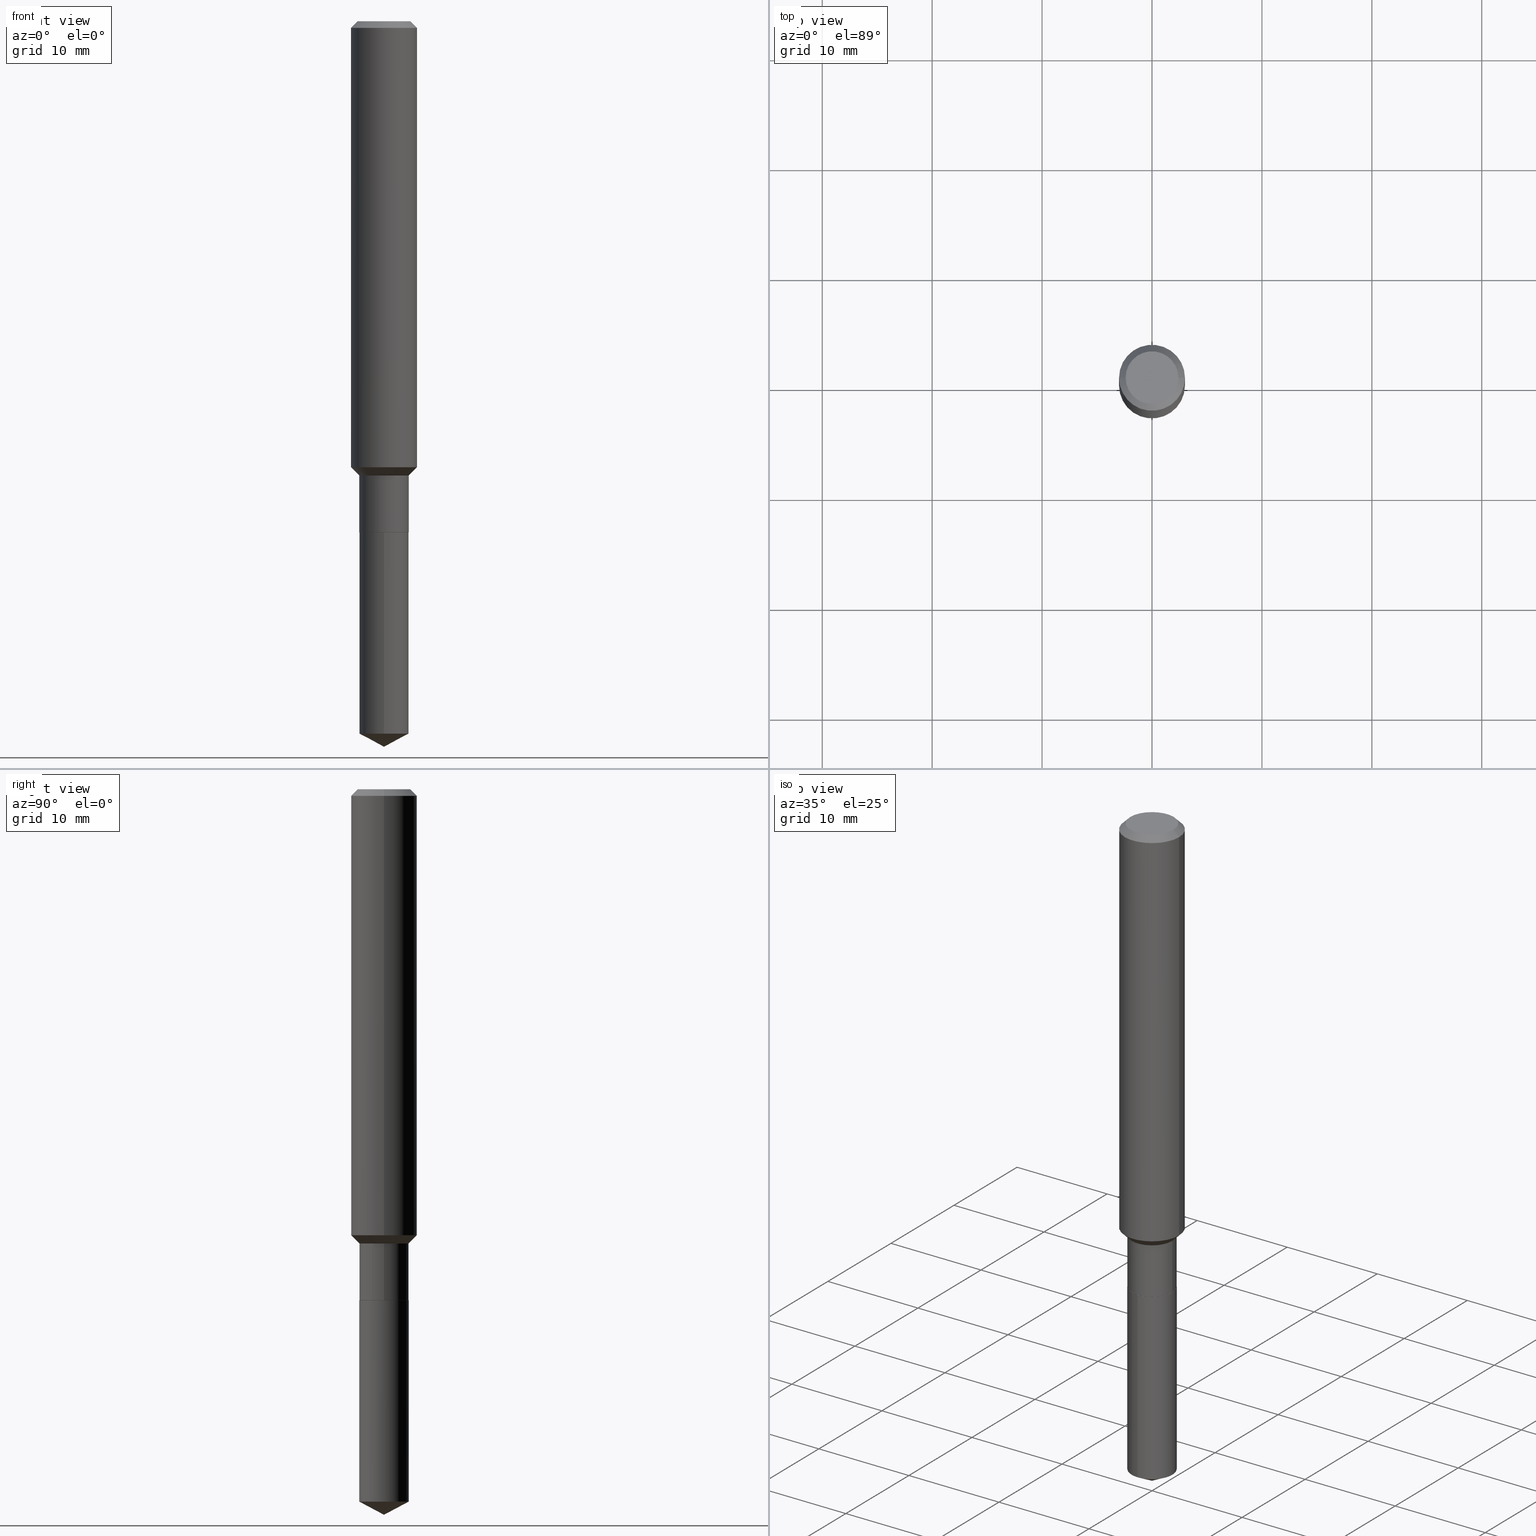
[diagram: canonical four-view strip — front | top / right | iso, engineering-drawing reading convention]
A machine part, canonical four-view strip (front | top / right | iso — engineering-drawing reading convention). The complete STEP part file that produces these views, byte-faithful:
ISO-10303-21;
HEADER;
FILE_DESCRIPTION (( 'STEP AP203' ),
    '1' );
FILE_NAME ('64615.STEP',
    '2024-04-24T18:26:03',
    ( '' ),
    ( '' ),
    'SwSTEP 2.0',
    'SolidWorks 2023',
    '' );
FILE_SCHEMA (( 'CONFIG_CONTROL_DESIGN' ));
ENDSEC;

DATA;
#1 = CIRCLE ( 'NONE', #194, 0.08809999999999999776 ) ;
#2 = DIRECTION ( 'NONE',  ( -2.445542298760082388E-29, 3.491376093292885535E-15, 1.000000000000000000 ) ) ;
#3 = APPROVAL_ROLE ( '' ) ;
#4 = DIRECTION ( 'NONE',  ( 1.000000000000000000, -6.982962677686264344E-15, 0.000000000000000000 ) ) ;
#5 = DATE_TIME_ROLE ( 'classification_date' ) ;
#6 = ORIENTED_EDGE ( 'NONE', *, *, #318, .F. ) ;
#7 = APPROVAL ( #291, 'UNSPECIFIED' ) ;
#8 = CARTESIAN_POINT ( 'NONE',  ( 4.476919743483128975E-29, -6.391854887020145602E-15, -1.830699999999999772 ) ) ;
#9 = ORIENTED_EDGE ( 'NONE', *, *, #26, .T. ) ;
#10 = LOCAL_TIME ( 14, 26, 3.000000000000000000, #464 ) ;
#11 = ORIENTED_EDGE ( 'NONE', *, *, #212, .F. ) ;
#12 = EDGE_LOOP ( 'NONE', ( #406, #47, #111, #485 ) ) ;
#13 = VERTEX_POINT ( 'NONE', #203 ) ;
#14 = CARTESIAN_POINT ( 'NONE',  ( 6.295408638835111705E-16, 0.08859999999999110254, -2.551290544354793521 ) ) ;
#15 = VECTOR ( 'NONE', #265, 39.37007874015748143 ) ;
#16 = PLANE ( 'NONE',  #405 ) ;
#17 = APPLICATION_PROTOCOL_DEFINITION ( 'international standard', 'config_control_design', 1994, #295 ) ;
#18 = ADVANCED_FACE ( 'NONE', ( #205 ), #351, .T. ) ;
#19 = DIRECTION ( 'NONE',  ( 1.000000000000000000, -6.982962677686265922E-15, 4.876176775795935793E-29 ) ) ;
#20 = CARTESIAN_POINT ( 'NONE',  ( 3.906391871000136996E-29, -5.577292290668039694E-15, -1.597399999999999709 ) ) ;
#21 = AXIS2_PLACEMENT_3D ( 'NONE', #362, #164, #478 ) ;
#22 = CC_DESIGN_APPROVAL ( #402, ( #489 ) ) ;
#23 = CARTESIAN_POINT ( 'NONE',  ( 5.776197320209327532E-31, -8.246878922347559293E-17, -0.02362000000000014088 ) ) ;
#24 = CARTESIAN_POINT ( 'NONE',  ( 3.978533200782598270E-29, -5.680290990163912349E-15, -1.626899999999999791 ) ) ;
#25 = DIRECTION ( 'NONE',  ( -2.445468806185136597E-29, 3.491481338843145583E-15, 1.000000000000000000 ) ) ;
#26 = EDGE_CURVE ( 'NONE', #467, #154, #45, .T. ) ;
#27 = CARTESIAN_POINT ( 'NONE',  ( -0.08859999999999998432, -5.050750126280464287E-15, -1.626899999999999791 ) ) ;
#28 = ORIENTED_EDGE ( 'NONE', *, *, #158, .F. ) ;
#29 = PERSON_AND_ORGANIZATION_ROLE ( 'classification_officer' ) ;
#30 = CARTESIAN_POINT ( 'NONE',  ( 5.776197320209327532E-31, -8.246878922347559293E-17, -0.02362000000000014088 ) ) ;
#31 = CARTESIAN_POINT ( 'NONE',  ( 4.476919743483128975E-29, -6.391854887020145602E-15, -1.830699999999999772 ) ) ;
#32 = DIRECTION ( 'NONE',  ( 1.000000000000000000, -6.982962677686267499E-15, 4.875432709231658792E-29 ) ) ;
#33 = EDGE_CURVE ( 'NONE', #466, #347, #54, .T. ) ;
#34 = CARTESIAN_POINT ( 'NONE',  ( 4.475697009080036734E-29, -6.390109146350724099E-15, -1.830199999999999827 ) ) ;
#35 = DIRECTION ( 'NONE',  ( 1.000000000000000000, -6.982962677686266711E-15, 0.000000000000000000 ) ) ;
#36 = DIRECTION ( 'NONE',  ( 1.000000000000000000, -6.982962677686270655E-15, 0.000000000000000000 ) ) ;
#37 = CIRCLE ( 'NONE', #177, 0.1181000000000001909 ) ;
#38 = VERTEX_POINT ( 'NONE', #395 ) ;
#39 = ADVANCED_FACE ( 'NONE', ( #200 ), #480, .T. ) ;
#40 = DIRECTION ( 'NONE',  ( -2.445468806185136597E-29, 3.491481338843145583E-15, 1.000000000000000000 ) ) ;
#41 = ORIENTED_EDGE ( 'NONE', *, *, #26, .F. ) ;
#42 = CARTESIAN_POINT ( 'NONE',  ( -0.08859999999999998432, -5.405659204373870556E-15, -1.626899999999999791 ) ) ;
#43 = ORIENTED_EDGE ( 'NONE', *, *, #242, .F. ) ;
#44 = ORIENTED_EDGE ( 'NONE', *, *, #353, .F. ) ;
#45 = CIRCLE ( 'NONE', #209, 0.08859999999999999820 ) ;
#46 = ORIENTED_EDGE ( 'NONE', *, *, #49, .F. ) ;
#47 = ORIENTED_EDGE ( 'NONE', *, *, #236, .T. ) ;
#48 = DIRECTION ( 'NONE',  ( -6.982962677686265133E-15, -1.000000000000000000, 6.166699759964476650E-15 ) ) ;
#49 = EDGE_CURVE ( 'NONE', #227, #115, #176, .T. ) ;
#50 = PRODUCT_DEFINITION_FORMATION_WITH_SPECIFIED_SOURCE ( 'ANY', '', #479, .NOT_KNOWN. ) ;
#51 = DIRECTION ( 'NONE',  ( 1.000000000000000000, -6.982962677686265922E-15, 4.876176775795935232E-29 ) ) ;
#52 = DIRECTION ( 'NONE',  ( 1.000000000000000000, -6.982962677686267499E-15, 4.875432709231658792E-29 ) ) ;
#53 = DIRECTION ( 'NONE',  ( -2.445542298760082388E-29, 3.491376093292885535E-15, 1.000000000000000000 ) ) ;
#54 = CIRCLE ( 'NONE', #277, 0.08859999999999999820 ) ;
#55 = VECTOR ( 'NONE', #103, 39.37007874015748143 ) ;
#56 = EDGE_CURVE ( 'NONE', #38, #231, #155, .T. ) ;
#57 = CARTESIAN_POINT ( 'NONE',  ( 6.239154399789330542E-29, -8.907707486633376146E-15, -2.551290544354793077 ) ) ;
#58 = CARTESIAN_POINT ( 'NONE',  ( -0.08809999999999999776, -5.765866736815497650E-15, -1.830699999999999772 ) ) ;
#59 = PERSON_AND_ORGANIZATION ( #393, #182 ) ;
#60 = DIRECTION ( 'NONE',  ( 2.438088387897960049E-29, -3.491481338843145188E-15, -1.000000000000000000 ) ) ;
#61 = LINE ( 'NONE', #451, #165 ) ;
#62 = ADVANCED_FACE ( 'NONE', ( #247 ), #364, .T. ) ;
#63 = CLOSED_SHELL ( 'NONE', ( #171, #438, #39, #129, #62, #469, #228, #357, #97, #408, #90, #333 ) ) ;
#64 = VECTOR ( 'NONE', #307, 39.37007874015748143 ) ;
#65 = CARTESIAN_POINT ( 'NONE',  ( 4.476919743483128975E-29, -6.391854887020145602E-15, -1.830699999999999772 ) ) ;
#66 = DIRECTION ( 'NONE',  ( -2.445468806185136597E-29, 3.491481338843145583E-15, 1.000000000000000000 ) ) ;
#67 = CARTESIAN_POINT ( 'NONE',  ( 4.475697009080036734E-29, -6.390109146350724099E-15, -1.830199999999999827 ) ) ;
#68 = DIRECTION ( 'NONE',  ( -2.445468806185136597E-29, 3.491481338843145583E-15, 1.000000000000000000 ) ) ;
#69 = CIRCLE ( 'NONE', #126, 0.08859999999999998432 ) ;
#70 = AXIS2_PLACEMENT_3D ( 'NONE', #96, #255, #335 ) ;
#71 = ORIENTED_EDGE ( 'NONE', *, *, #369, .T. ) ;
#72 = CARTESIAN_POINT ( 'NONE',  ( 4.476919743483128975E-29, -6.391854887020145602E-15, -1.830699999999999772 ) ) ;
#73 = PERSON_AND_ORGANIZATION_ROLE ( 'design_supplier' ) ;
#74 = ORIENTED_EDGE ( 'NONE', *, *, #276, .T. ) ;
#75 = ORIENTED_EDGE ( 'NONE', *, *, #282, .F. ) ;
#76 = EDGE_CURVE ( 'NONE', #231, #392, #366, .T. ) ;
#77 = ORIENTED_EDGE ( 'NONE', *, *, #135, .F. ) ;
#78 = VECTOR ( 'NONE', #452, 39.37007874015748143 ) ;
#79 = EDGE_LOOP ( 'NONE', ( #77, #146 ) ) ;
#80 = EDGE_CURVE ( 'NONE', #350, #428, #69, .T. ) ;
#81 = EDGE_LOOP ( 'NONE', ( #240, #197, #287, #432 ) ) ;
#82 = CARTESIAN_POINT ( 'NONE',  ( 4.476919743483128975E-29, -6.391854887020145602E-15, -1.830699999999999772 ) ) ;
#83 = AXIS2_PLACEMENT_3D ( 'NONE', #23, #128, #161 ) ;
#84 = CARTESIAN_POINT ( 'NONE',  ( 6.354497109098197355E-29, -9.071991640812233890E-15, -2.598399999999999821 ) ) ;
#85 = LOCAL_TIME ( 14, 26, 3.000000000000000000, #253 ) ;
#86 = ORIENTED_EDGE ( 'NONE', *, *, #148, .F. ) ;
#87 = FACE_OUTER_BOUND ( 'NONE', #283, .T. ) ;
#88 = DIRECTION ( 'NONE',  ( -2.438088387897960049E-29, 3.491481338843145188E-15, 1.000000000000000000 ) ) ;
#89 = PERSON_AND_ORGANIZATION_ROLE ( 'design_owner' ) ;
#90 = ADVANCED_FACE ( 'NONE', ( #471 ), #16, .F. ) ;
#91 = DIRECTION ( 'NONE',  ( -2.445542298760082388E-29, 3.491376093292885535E-15, 1.000000000000000000 ) ) ;
#92 = APPLICATION_PROTOCOL_DEFINITION ( 'international standard', 'config_control_design', 1994, #409 ) ;
#93 = VECTOR ( 'NONE', #186, 39.37007874015748143 ) ;
#94 = DIRECTION ( 'NONE',  ( 0.7071067811865460184, -7.319954787623251312E-15, -0.7071067811865490160 ) ) ;
#95 = LINE ( 'NONE', #454, #55 ) ;
#96 = CARTESIAN_POINT ( 'NONE',  ( 6.239154399789330542E-29, -8.907707486633376146E-15, -2.551290544354793077 ) ) ;
#97 = ADVANCED_FACE ( 'NONE', ( #160 ), #309, .T. ) ;
#98 = APPROVAL_DATE_TIME ( #113, #7 ) ;
#99 = DIRECTION ( 'NONE',  ( 1.000000000000000000, -6.982962677686270655E-15, 0.000000000000000000 ) ) ;
#100 = VECTOR ( 'NONE', #403, 39.37007874015748143 ) ;
#101 = CIRCLE ( 'NONE', #157, 0.08859999999999999820 ) ;
#102 = DIRECTION ( 'NONE',  ( 1.000000000000000000, -6.982962677686264344E-15, 0.000000000000000000 ) ) ;
#103 = DIRECTION ( 'NONE',  ( -6.165590087286836029E-15, -0.8829475928589264333, 0.4694715627858916385 ) ) ;
#104 = DIRECTION ( 'NONE',  ( -2.445542298760082388E-29, 3.491376093292885535E-15, 1.000000000000000000 ) ) ;
#105 = ADVANCED_FACE ( 'NONE', ( #321 ), #437, .T. ) ;
#106 = DIRECTION ( 'NONE',  ( -2.445468806185136597E-29, 3.491481338843145583E-15, 1.000000000000000000 ) ) ;
#107 = PERSON_AND_ORGANIZATION ( #393, #182 ) ;
#108 = ORIENTED_EDGE ( 'NONE', *, *, #378, .F. ) ;
#109 = DIRECTION ( 'NONE',  ( -2.445468806185136877E-29, 3.491481338843145188E-15, 1.000000000000000000 ) ) ;
#110 = DATE_AND_TIME ( #273, #151 ) ;
#111 = ORIENTED_EDGE ( 'NONE', *, *, #282, .T. ) ;
#112 = CARTESIAN_POINT ( 'NONE',  ( 0.1181000000000001077, -8.246878922347488542E-16, 5.758764772215005345E-30 ) ) ;
#113 = DATE_AND_TIME ( #271, #248 ) ;
#114 = ORIENTED_EDGE ( 'NONE', *, *, #426, .F. ) ;
#115 = VERTEX_POINT ( 'NONE', #286 ) ;
#116 = ORIENTED_EDGE ( 'NONE', *, *, #250, .T. ) ;
#117 = AXIS2_PLACEMENT_3D ( 'NONE', #125, #284, #52 ) ;
#118 = MANIFOLD_SOLID_BREP ( 'Body-Move/Copy2[1]', #379 ) ;
#119 = ADVANCED_FACE ( 'NONE', ( #376 ), #367, .F. ) ;
#120 = CARTESIAN_POINT ( 'NONE',  ( 4.476919743483128975E-29, -6.391854887020145602E-15, -1.830699999999999772 ) ) ;
#121 = PRODUCT_RELATED_PRODUCT_CATEGORY ( 'detail', '', ( #479 ) ) ;
#122 = ORIENTED_EDGE ( 'NONE', *, *, #80, .F. ) ;
#123 = ADVANCED_BREP_SHAPE_REPRESENTATION ( '64615', ( #118, #127, #340 ), #234 ) ;
#124 = CARTESIAN_POINT ( 'NONE',  ( 6.295408638835111705E-16, 0.08859999999999361442, -1.830699999999999994 ) ) ;
#125 = CARTESIAN_POINT ( 'NONE',  ( 6.603013411620882309E-46, -9.427353171913646324E-32, -2.700101262760083747E-17 ) ) ;
#126 = AXIS2_PLACEMENT_3D ( 'NONE', #208, #25, #170 ) ;
#127 = MANIFOLD_SOLID_BREP ( 'Body-Move/Copy2[2]', #63 ) ;
#128 = DIRECTION ( 'NONE',  ( 2.445468806185136597E-29, -3.491481338843145583E-15, -1.000000000000000000 ) ) ;
#129 = ADVANCED_FACE ( 'NONE', ( #132 ), #259, .T. ) ;
#130 = ORIENTED_EDGE ( 'NONE', *, *, #326, .T. ) ;
#131 = CC_DESIGN_PERSON_AND_ORGANIZATION_ASSIGNMENT ( #216, #73, ( #50 ) ) ;
#132 = FACE_OUTER_BOUND ( 'NONE', #81, .T. ) ;
#133 = APPROVAL_STATUS ( 'not_yet_approved' ) ;
#134 = APPROVAL_PERSON_ORGANIZATION ( #320, #402, #3 ) ;
#135 = EDGE_CURVE ( 'NONE', #316, #152, #476, .T. ) ;
#136 = FACE_OUTER_BOUND ( 'NONE', #181, .T. ) ;
#137 = ORIENTED_EDGE ( 'NONE', *, *, #242, .T. ) ;
#138 = CARTESIAN_POINT ( 'NONE',  ( -8.992683029832891878E-28, 1.283835673906032271E-13, 36.77167874015748339 ) ) ;
#139 = CARTESIAN_POINT ( 'NONE',  ( 0.08859999999999999820, -7.008799639593727840E-15, -1.830199999999999827 ) ) ;
#140 = AXIS2_PLACEMENT_3D ( 'NONE', #72, #2, #458 ) ;
#141 = LINE ( 'NONE', #58, #468 ) ;
#142 = ORIENTED_EDGE ( 'NONE', *, *, #369, .F. ) ;
#143 = EDGE_CURVE ( 'NONE', #152, #13, #141, .T. ) ;
#144 = LINE ( 'NONE', #270, #64 ) ;
#145 = CARTESIAN_POINT ( 'NONE',  ( 0.08859999999999998432, -6.186904932430030515E-16, 4.320292623355198064E-30 ) ) ;
#146 = ORIENTED_EDGE ( 'NONE', *, *, #363, .F. ) ;
#147 = CARTESIAN_POINT ( 'NONE',  ( 0.08809999999999999776, -7.007053898924305548E-15, -1.830699999999999772 ) ) ;
#148 = EDGE_CURVE ( 'NONE', #350, #227, #414, .T. ) ;
#149 = DIRECTION ( 'NONE',  ( -2.445468806185136597E-29, 3.491481338843145583E-15, 1.000000000000000000 ) ) ;
#150 = DATE_AND_TIME ( #386, #85 ) ;
#151 = LOCAL_TIME ( 14, 26, 3.000000000000000000, #449 ) ;
#152 = VERTEX_POINT ( 'NONE', #301 ) ;
#153 = ORIENTED_EDGE ( 'NONE', *, *, #76, .T. ) ;
#154 = VERTEX_POINT ( 'NONE', #455 ) ;
#155 = CIRCLE ( 'NONE', #117, 0.09447999999999998066 ) ;
#156 = VERTEX_POINT ( 'NONE', #139 ) ;
#157 = AXIS2_PLACEMENT_3D ( 'NONE', #67, #213, #448 ) ;
#158 = EDGE_CURVE ( 'NONE', #156, #13, #435, .T. ) ;
#159 = CYLINDRICAL_SURFACE ( 'NONE', #183, 0.08859999999999998432 ) ;
#160 = FACE_OUTER_BOUND ( 'NONE', #456, .T. ) ;
#161 = DIRECTION ( 'NONE',  ( -1.000000000000000000, 6.982962677686266711E-15, 0.000000000000000000 ) ) ;
#162 = DIRECTION ( 'NONE',  ( 0.7071067811866199593, -2.468850131083015945E-15, 0.7071067811864750752 ) ) ;
#163 = EDGE_CURVE ( 'NONE', #154, #347, #61, .T. ) ;
#164 = DIRECTION ( 'NONE',  ( -2.445542298760082388E-29, 3.491376093292885535E-15, 1.000000000000000000 ) ) ;
#165 = VECTOR ( 'NONE', #327, 39.37007874015748143 ) ;
#166 = CARTESIAN_POINT ( 'NONE',  ( 0.000000000000000000, 0.000000000000000000, 0.000000000000000000 ) ) ;
#167 = AXIS2_PLACEMENT_3D ( 'NONE', #24, #169, #245 ) ;
#168 = ORIENTED_EDGE ( 'NONE', *, *, #80, .T. ) ;
#169 = DIRECTION ( 'NONE',  ( -2.445468806185136597E-29, 3.491481338843145583E-15, 1.000000000000000000 ) ) ;
#170 = DIRECTION ( 'NONE',  ( 1.000000000000000000, -6.982962677686270655E-15, 0.000000000000000000 ) ) ;
#171 = ADVANCED_FACE ( 'NONE', ( #289 ), #482, .T. ) ;
#172 = COORDINATED_UNIVERSAL_TIME_OFFSET ( 5, 0, .BEHIND. ) ;
#173 = CARTESIAN_POINT ( 'NONE',  ( 6.295408638834934212E-16, 0.08859999999999361442, -1.830699999999999994 ) ) ;
#174 = ORIENTED_EDGE ( 'NONE', *, *, #143, .F. ) ;
#175 = PERSON_AND_ORGANIZATION ( #393, #182 ) ;
#176 = CIRCLE ( 'NONE', #193, 0.1181000000000001909 ) ;
#177 = AXIS2_PLACEMENT_3D ( 'NONE', #223, #381, #336 ) ;
#178 = CARTESIAN_POINT ( 'NONE',  ( -0.09447999999999998066, 7.009847083995354710E-16, -2.700101262760559836E-17 ) ) ;
#179 = DIRECTION ( 'NONE',  ( 0.7071067811865493491, -2.468850131082276388E-15, 0.7071067811865456854 ) ) ;
#180 = DIRECTION ( 'NONE',  ( 6.982962677686265922E-15, 1.000000000000000000, -3.491376093292885535E-15 ) ) ;
#181 = EDGE_LOOP ( 'NONE', ( #44, #302, #41 ) ) ;
#182 = ORGANIZATION ( 'UNSPECIFIED', 'UNSPECIFIED', '' ) ;
#183 = AXIS2_PLACEMENT_3D ( 'NONE', #322, #239, #281 ) ;
#184 = LINE ( 'NONE', #145, #436 ) ;
#185 = CC_DESIGN_SECURITY_CLASSIFICATION ( #310, ( #50 ) ) ;
#186 = DIRECTION ( 'NONE',  ( -2.445468806185136877E-29, 3.491481338843145188E-15, 1.000000000000000000 ) ) ;
#187 = CYLINDRICAL_SURFACE ( 'NONE', #140, 0.08859999999999999820 ) ;
#188 = ORIENTED_EDGE ( 'NONE', *, *, #33, .F. ) ;
#189 = ADVANCED_FACE ( 'NONE', ( #136 ), #199, .T. ) ;
#190 = CYLINDRICAL_SURFACE ( 'NONE', #477, 0.1181000000000001077 ) ;
#191 = APPROVAL_STATUS ( 'not_yet_approved' ) ;
#192 = ORIENTED_EDGE ( 'NONE', *, *, #204, .F. ) ;
#193 = AXIS2_PLACEMENT_3D ( 'NONE', #20, #441, #244 ) ;
#194 = AXIS2_PLACEMENT_3D ( 'NONE', #8, #149, #463 ) ;
#195 = EDGE_LOOP ( 'NONE', ( #461, #237, #28, #427 ) ) ;
#196 = PRODUCT_DEFINITION_SHAPE ( 'NONE', 'NONE',  #489 ) ;
#197 = ORIENTED_EDGE ( 'NONE', *, *, #148, .T. ) ;
#198 = EDGE_LOOP ( 'NONE', ( #86, #168, #116, #46 ) ) ;
#199 = CONICAL_SURFACE ( 'NONE', #268, 74.04434902938362484, 1.082104136236486935 ) ;
#200 = FACE_OUTER_BOUND ( 'NONE', #314, .T. ) ;
#201 = CC_DESIGN_APPROVAL ( #221, ( #50 ) ) ;
#202 = PERSON_AND_ORGANIZATION ( #393, #182 ) ;
#203 = CARTESIAN_POINT ( 'NONE',  ( -0.08859999999999999820, -5.405659204373870556E-15, -1.830199999999999827 ) ) ;
#204 = EDGE_CURVE ( 'NONE', #467, #466, #257, .T. ) ;
#205 = FACE_OUTER_BOUND ( 'NONE', #425, .T. ) ;
#206 =( LENGTH_UNIT ( ) NAMED_UNIT ( * ) SI_UNIT ( $, .METRE. ) );
#207 = DIMENSIONAL_EXPONENTS ( 1.000000000000000000, 0.000000000000000000, 0.000000000000000000, 0.000000000000000000, 0.000000000000000000, 0.000000000000000000, 0.000000000000000000 ) ;
#208 = CARTESIAN_POINT ( 'NONE',  ( 3.978533200782598270E-29, -5.680290990163912349E-15, -1.626899999999999791 ) ) ;
#209 = AXIS2_PLACEMENT_3D ( 'NONE', #57, #91, #48 ) ;
#210 = CONICAL_SURFACE ( 'NONE', #285, 0.08809999999999999776, 0.7853981633975507526 ) ;
#211 = DIRECTION ( 'NONE',  ( -2.445468806185136597E-29, 3.491481338843145583E-15, 1.000000000000000000 ) ) ;
#212 = EDGE_CURVE ( 'NONE', #13, #350, #299, .T. ) ;
#213 = DIRECTION ( 'NONE',  ( -2.445468806185136597E-29, 3.491481338843145583E-15, 1.000000000000000000 ) ) ;
#214 = APPROVAL_DATE_TIME ( #110, #221 ) ;
#215 = DIRECTION ( 'NONE',  ( 2.445542298760082107E-29, -3.491376093292885535E-15, -1.000000000000000000 ) ) ;
#216 = PERSON_AND_ORGANIZATION ( #393, #182 ) ;
#217 = CONICAL_SURFACE ( 'NONE', #380, 0.1180999999999999966, 0.7853981633974461696 ) ;
#218 = CARTESIAN_POINT ( 'NONE',  ( 3.978533200782598270E-29, -5.680290990163912349E-15, -1.626899999999999791 ) ) ;
#219 = PLANE ( 'NONE',  #278 ) ;
#220 = DIRECTION ( 'NONE',  ( -6.982962677686266711E-15, -1.000000000000000000, 3.541896320645556530E-15 ) ) ;
#221 = APPROVAL ( #133, 'UNSPECIFIED' ) ;
#222 = DIRECTION ( 'NONE',  ( -2.445468806185136597E-29, 3.491481338843145583E-15, 1.000000000000000000 ) ) ;
#223 = CARTESIAN_POINT ( 'NONE',  ( 3.906391871000136996E-29, -5.577292290668039694E-15, -1.597399999999999709 ) ) ;
#224 = VECTOR ( 'NONE', #487, 39.37007874015748143 ) ;
#225 = AXIS2_PLACEMENT_3D ( 'NONE', #418, #222, #341 ) ;
#226 = FACE_OUTER_BOUND ( 'NONE', #272, .T. ) ;
#227 = VERTEX_POINT ( 'NONE', #481 ) ;
#228 = ADVANCED_FACE ( 'NONE', ( #296 ), #429, .T. ) ;
#229 = CARTESIAN_POINT ( 'NONE',  ( 0.08809999999999999776, -7.007053898924305548E-15, -1.830699999999999772 ) ) ;
#230 = APPROVAL_ROLE ( '' ) ;
#231 = VERTEX_POINT ( 'NONE', #178 ) ;
#232 = ORIENTED_EDGE ( 'NONE', *, *, #474, .F. ) ;
#233 = AXIS2_PLACEMENT_3D ( 'NONE', #434, #323, #238 ) ;
#234 =( GEOMETRIC_REPRESENTATION_CONTEXT ( 3 ) GLOBAL_UNCERTAINTY_ASSIGNED_CONTEXT ( ( #413 ) ) GLOBAL_UNIT_ASSIGNED_CONTEXT ( ( #442, #433, #439 ) ) REPRESENTATION_CONTEXT ( 'NONE', 'WORKASPACE' ) );
#235 = ORIENTED_EDGE ( 'NONE', *, *, #474, .T. ) ;
#236 = EDGE_CURVE ( 'NONE', #38, #319, #262, .T. ) ;
#237 = ORIENTED_EDGE ( 'NONE', *, *, #143, .T. ) ;
#238 = DIRECTION ( 'NONE',  ( -6.982962677686266711E-15, -1.000000000000000000, 3.541896320645556530E-15 ) ) ;
#239 = DIRECTION ( 'NONE',  ( -2.445468806185136597E-29, 3.491481338843145583E-15, 1.000000000000000000 ) ) ;
#240 = ORIENTED_EDGE ( 'NONE', *, *, #453, .T. ) ;
#241 = CIRCLE ( 'NONE', #269, 0.08859999999999999820 ) ;
#242 = EDGE_CURVE ( 'NONE', #13, #156, #101, .T. ) ;
#243 = DIRECTION ( 'NONE',  ( -2.445542298760082388E-29, 3.491376093292885535E-15, 1.000000000000000000 ) ) ;
#244 = DIRECTION ( 'NONE',  ( 1.000000000000000000, -6.982962677686269077E-15, 0.000000000000000000 ) ) ;
#245 = DIRECTION ( 'NONE',  ( 1.000000000000000000, -6.982962677686270655E-15, 0.000000000000000000 ) ) ;
#246 = ORIENTED_EDGE ( 'NONE', *, *, #318, .T. ) ;
#247 = FACE_OUTER_BOUND ( 'NONE', #267, .T. ) ;
#248 = LOCAL_TIME ( 14, 26, 3.000000000000000000, #294 ) ;
#249 = DIRECTION ( 'NONE',  ( 1.000000000000000000, 0.000000000000000000, 0.000000000000000000 ) ) ;
#250 = EDGE_CURVE ( 'NONE', #428, #115, #293, .T. ) ;
#251 = CARTESIAN_POINT ( 'NONE',  ( 4.476919743483128975E-29, -6.391854887020145602E-15, -1.830699999999999772 ) ) ;
#252 = ORIENTED_EDGE ( 'NONE', *, *, #288, .T. ) ;
#253 = COORDINATED_UNIVERSAL_TIME_OFFSET ( 5, 0, .BEHIND. ) ;
#254 = FACE_OUTER_BOUND ( 'NONE', #12, .T. ) ;
#255 = DIRECTION ( 'NONE',  ( -2.445542298760082388E-29, 3.491376093292885535E-15, 1.000000000000000000 ) ) ;
#256 = LINE ( 'NONE', #147, #324 ) ;
#257 = LINE ( 'NONE', #173, #358 ) ;
#258 = CC_DESIGN_PERSON_AND_ORGANIZATION_ASSIGNMENT ( #202, #89, ( #479 ) ) ;
#259 = CONICAL_SURFACE ( 'NONE', #373, 0.08859999999999998432, 0.7853981633974509435 ) ;
#260 = AXIS2_PLACEMENT_3D ( 'NONE', #382, #40, #32 ) ;
#261 = CARTESIAN_POINT ( 'NONE',  ( -0.1180999999999999966, -1.990729569013078195E-15, -0.02362000000000014088 ) ) ;
#262 = LINE ( 'NONE', #484, #398 ) ;
#263 = CARTESIAN_POINT ( 'NONE',  ( 0.08859999999999998432, -6.298981483406916090E-15, -1.626899999999999791 ) ) ;
#264 = DIRECTION ( 'NONE',  ( -2.445468806185136597E-29, 3.491481338843145583E-15, 1.000000000000000000 ) ) ;
#265 = DIRECTION ( 'NONE',  ( -2.445468806185136877E-29, 3.491481338843145188E-15, 1.000000000000000000 ) ) ;
#266 = PERSON_AND_ORGANIZATION ( #393, #182 ) ;
#267 = EDGE_LOOP ( 'NONE', ( #388, #421, #313, #368 ) ) ;
#268 = AXIS2_PLACEMENT_3D ( 'NONE', #138, #104, #220 ) ;
#269 = AXIS2_PLACEMENT_3D ( 'NONE', #404, #243, #473 ) ;
#270 = CARTESIAN_POINT ( 'NONE',  ( 6.354499468662278356E-29, -9.071991640812233890E-15, -2.598399999999999821 ) ) ;
#271 = CALENDAR_DATE ( 2024, 24, 4 ) ;
#272 = EDGE_LOOP ( 'NONE', ( #108, #274, #246, #279 ) ) ;
#273 = CALENDAR_DATE ( 2024, 24, 4 ) ;
#274 = ORIENTED_EDGE ( 'NONE', *, *, #49, .T. ) ;
#275 = EDGE_LOOP ( 'NONE', ( #235, #355 ) ) ;
#276 = EDGE_CURVE ( 'NONE', #154, #467, #445, .T. ) ;
#277 = AXIS2_PLACEMENT_3D ( 'NONE', #82, #53, #440 ) ;
#278 = AXIS2_PLACEMENT_3D ( 'NONE', #300, #60, #292 ) ;
#279 = ORIENTED_EDGE ( 'NONE', *, *, #288, .F. ) ;
#280 = ORIENTED_EDGE ( 'NONE', *, *, #163, .F. ) ;
#281 = DIRECTION ( 'NONE',  ( 1.000000000000000000, -6.982962677686265922E-15, 4.876176775795935232E-29 ) ) ;
#282 = EDGE_CURVE ( 'NONE', #319, #392, #365, .T. ) ;
#283 = EDGE_LOOP ( 'NONE', ( #11, #137, #130, #122 ) ) ;
#284 = DIRECTION ( 'NONE',  ( -2.445468806185136597E-29, 3.491481338843145583E-15, 1.000000000000000000 ) ) ;
#285 = AXIS2_PLACEMENT_3D ( 'NONE', #345, #68, #4 ) ;
#286 = CARTESIAN_POINT ( 'NONE',  ( 0.1181000000000001909, -6.401980182902789534E-15, -1.597399999999999709 ) ) ;
#287 = ORIENTED_EDGE ( 'NONE', *, *, #389, .F. ) ;
#288 = EDGE_CURVE ( 'NONE', #392, #319, #352, .T. ) ;
#289 = FACE_OUTER_BOUND ( 'NONE', #195, .T. ) ;
#290 = AXIS2_PLACEMENT_3D ( 'NONE', #399, #211, #51 ) ;
#291 = APPROVAL_STATUS ( 'not_yet_approved' ) ;
#292 = DIRECTION ( 'NONE',  ( -1.000000000000000000, 6.982962677686265922E-15, -4.876176775795935793E-29 ) ) ;
#293 = LINE ( 'NONE', #375, #462 ) ;
#295 = APPLICATION_CONTEXT ( 'configuration controlled 3d designs of mechanical parts and assemblies' ) ;
#294 = COORDINATED_UNIVERSAL_TIME_OFFSET ( 5, 0, .BEHIND. ) ;
#296 = FACE_OUTER_BOUND ( 'NONE', #198, .T. ) ;
#297 = ADVANCED_FACE ( 'NONE', ( #348 ), #187, .T. ) ;
#298 = LINE ( 'NONE', #371, #93 ) ;
#299 = LINE ( 'NONE', #377, #78 ) ;
#300 = CARTESIAN_POINT ( 'NONE',  ( 3.301506705810441154E-46, -4.713676585956823162E-32, -1.350050631380041873E-17 ) ) ;
#301 = CARTESIAN_POINT ( 'NONE',  ( -0.08809999999999999776, -5.763217509641386449E-15, -1.830699999999999772 ) ) ;
#302 = ORIENTED_EDGE ( 'NONE', *, *, #426, .T. ) ;
#303 = DIRECTION ( 'NONE',  ( 1.000000000000000000, -6.982962677686266711E-15, 4.876176775795935793E-29 ) ) ;
#304 = DATE_AND_TIME ( #383, #10 ) ;
#305 = ORIENTED_EDGE ( 'NONE', *, *, #378, .T. ) ;
#306 = CC_DESIGN_DATE_AND_TIME_ASSIGNMENT ( #447, #5, ( #310 ) ) ;
#307 = DIRECTION ( 'NONE',  ( 6.273719981627766865E-15, 0.8829475928589298750, 0.4694715627858853657 ) ) ;
#308 = ORIENTED_EDGE ( 'NONE', *, *, #56, .T. ) ;
#309 = CONICAL_SURFACE ( 'NONE', #83, 0.1180999999999999966, 0.7853981633974461696 ) ;
#310 = SECURITY_CLASSIFICATION ( '', '', #411 ) ;
#311 = LINE ( 'NONE', #112, #15 ) ;
#312 = ORIENTED_EDGE ( 'NONE', *, *, #276, .F. ) ;
#313 = ORIENTED_EDGE ( 'NONE', *, *, #453, .F. ) ;
#314 = EDGE_LOOP ( 'NONE', ( #430, #305, #75, #6 ) ) ;
#315 = CC_DESIGN_APPROVAL ( #7, ( #310 ) ) ;
#316 = VERTEX_POINT ( 'NONE', #229 ) ;
#317 = LENGTH_MEASURE_WITH_UNIT ( LENGTH_MEASURE( 0.02539999999999999897 ), #206 );
#318 = EDGE_CURVE ( 'NONE', #115, #319, #311, .T. ) ;
#319 = VERTEX_POINT ( 'NONE', #419 ) ;
#320 = PERSON_AND_ORGANIZATION ( #393, #182 ) ;
#321 = FACE_OUTER_BOUND ( 'NONE', #394, .T. ) ;
#322 = CARTESIAN_POINT ( 'NONE',  ( 0.000000000000000000, 0.000000000000000000, 0.000000000000000000 ) ) ;
#323 = DIRECTION ( 'NONE',  ( -2.445542298760082388E-29, 3.491376093292885535E-15, 1.000000000000000000 ) ) ;
#324 = VECTOR ( 'NONE', #162, 39.37007874015748143 ) ;
#325 = CARTESIAN_POINT ( 'NONE',  ( 0.000000000000000000, 0.000000000000000000, 0.000000000000000000 ) ) ;
#326 = EDGE_CURVE ( 'NONE', #156, #428, #184, .T. ) ;
#327 = DIRECTION ( 'NONE',  ( -2.445542298760082668E-29, 3.491376093292885535E-15, 1.000000000000000000 ) ) ;
#328 = SHAPE_DEFINITION_REPRESENTATION ( #196, #123 ) ;
#329 = DIRECTION ( 'NONE',  ( -2.445468806185136597E-29, 3.491481338843145583E-15, 1.000000000000000000 ) ) ;
#330 = AXIS2_PLACEMENT_3D ( 'NONE', #34, #264, #488 ) ;
#331 = ORIENTED_EDGE ( 'NONE', *, *, #363, .T. ) ;
#332 = DIRECTION ( 'NONE',  ( 2.445468806185136597E-29, -3.491481338843145583E-15, -1.000000000000000000 ) ) ;
#333 = ADVANCED_FACE ( 'NONE', ( #385 ), #210, .T. ) ;
#334 = DIRECTION ( 'NONE',  ( -0.7071067811866199593, 7.493145998870616062E-15, 0.7071067811864750752 ) ) ;
#335 = DIRECTION ( 'NONE',  ( -6.982962677686265133E-15, -1.000000000000000000, 6.166699759964476650E-15 ) ) ;
#336 = DIRECTION ( 'NONE',  ( 1.000000000000000000, -6.982962677686269077E-15, 0.000000000000000000 ) ) ;
#337 = DIRECTION ( 'NONE',  ( -2.445468806185136597E-29, 3.491481338843145583E-15, 1.000000000000000000 ) ) ;
#338 = EDGE_LOOP ( 'NONE', ( #74, #390, #232, #280 ) ) ;
#339 = AXIS2_PLACEMENT_3D ( 'NONE', #325, #360, #475 ) ;
#340 = AXIS2_PLACEMENT_3D ( 'NONE', #166, #397, #249 ) ;
#341 = DIRECTION ( 'NONE',  ( 1.000000000000000000, -6.982962677686266711E-15, 0.000000000000000000 ) ) ;
#342 = APPROVAL_DATE_TIME ( #150, #402 ) ;
#343 = CC_DESIGN_DATE_AND_TIME_ASSIGNMENT ( #304, #486, ( #489 ) ) ;
#344 = FACE_OUTER_BOUND ( 'NONE', #410, .T. ) ;
#345 = CARTESIAN_POINT ( 'NONE',  ( 4.476919743483128975E-29, -6.391854887020145602E-15, -1.830699999999999772 ) ) ;
#346 = APPROVAL_ROLE ( '' ) ;
#347 = VERTEX_POINT ( 'NONE', #424 ) ;
#348 = FACE_OUTER_BOUND ( 'NONE', #338, .T. ) ;
#349 = CALENDAR_DATE ( 2024, 24, 4 ) ;
#350 = VERTEX_POINT ( 'NONE', #42 ) ;
#351 = CONICAL_SURFACE ( 'NONE', #233, 74.04434902938362484, 1.082104136236486935 ) ;
#352 = CIRCLE ( 'NONE', #225, 0.1180999999999999966 ) ;
#353 = EDGE_CURVE ( 'NONE', #472, #467, #144, .T. ) ;
#354 = ORIENTED_EDGE ( 'NONE', *, *, #443, .T. ) ;
#355 = ORIENTED_EDGE ( 'NONE', *, *, #33, .T. ) ;
#356 = EDGE_LOOP ( 'NONE', ( #174, #331, #354, #43 ) ) ;
#357 = ADVANCED_FACE ( 'NONE', ( #226 ), #190, .T. ) ;
#358 = VECTOR ( 'NONE', #407, 39.37007874015748143 ) ;
#359 = AXIS2_PLACEMENT_3D ( 'NONE', #218, #329, #36 ) ;
#360 = DIRECTION ( 'NONE',  ( -2.445468806185136597E-29, 3.491481338843145583E-15, 1.000000000000000000 ) ) ;
#361 = CARTESIAN_POINT ( 'NONE',  ( -0.1180999999999999966, 7.422191030112725094E-16, -0.02362000000000014088 ) ) ;
#362 = CARTESIAN_POINT ( 'NONE',  ( 4.476919743483128975E-29, -6.391854887020145602E-15, -1.830699999999999772 ) ) ;
#363 = EDGE_CURVE ( 'NONE', #152, #316, #1, .T. ) ;
#364 = CYLINDRICAL_SURFACE ( 'NONE', #290, 0.08859999999999998432 ) ;
#365 = CIRCLE ( 'NONE', #416, 0.1180999999999999966 ) ;
#366 = LINE ( 'NONE', #361, #100 ) ;
#367 = PLANE ( 'NONE',  #415 ) ;
#368 = ORIENTED_EDGE ( 'NONE', *, *, #326, .F. ) ;
#369 = EDGE_CURVE ( 'NONE', #231, #38, #483, .T. ) ;
#370 = PERSON_AND_ORGANIZATION ( #393, #182 ) ;
#371 = CARTESIAN_POINT ( 'NONE',  ( -0.1181000000000001077, 8.391509709326790846E-16, -5.809262341591049389E-30 ) ) ;
#372 = CARTESIAN_POINT ( 'NONE',  ( 3.978533200782598270E-29, -5.680290990163912349E-15, -1.626899999999999791 ) ) ;
#373 = AXIS2_PLACEMENT_3D ( 'NONE', #372, #337, #99 ) ;
#374 = APPROVAL_PERSON_ORGANIZATION ( #175, #7, #230 ) ;
#375 = CARTESIAN_POINT ( 'NONE',  ( 0.08859999999999998432, -6.298981483406916090E-15, -1.626899999999999791 ) ) ;
#376 = FACE_OUTER_BOUND ( 'NONE', #275, .T. ) ;
#377 = CARTESIAN_POINT ( 'NONE',  ( -0.08859999999999998432, 6.295408638834486533E-16, -4.358176489965845566E-30 ) ) ;
#378 = EDGE_CURVE ( 'NONE', #227, #392, #298, .T. ) ;
#379 = CLOSED_SHELL ( 'NONE', ( #297, #18, #189, #105, #119 ) ) ;
#380 = AXIS2_PLACEMENT_3D ( 'NONE', #30, #332, #450 ) ;
#381 = DIRECTION ( 'NONE',  ( -2.445468806185136597E-29, 3.491481338843145583E-15, 1.000000000000000000 ) ) ;
#382 = CARTESIAN_POINT ( 'NONE',  ( 6.603013411620882309E-46, -9.427353171913646324E-32, -2.700101262760083747E-17 ) ) ;
#383 = CALENDAR_DATE ( 2024, 24, 4 ) ;
#384 = ORIENTED_EDGE ( 'NONE', *, *, #236, .F. ) ;
#385 = FACE_OUTER_BOUND ( 'NONE', #356, .T. ) ;
#386 = CALENDAR_DATE ( 2024, 24, 4 ) ;
#387 = DESIGN_CONTEXT ( 'detailed design', #295, 'design' ) ;
#388 = ORIENTED_EDGE ( 'NONE', *, *, #158, .T. ) ;
#389 = EDGE_CURVE ( 'NONE', #115, #227, #37, .T. ) ;
#390 = ORIENTED_EDGE ( 'NONE', *, *, #204, .T. ) ;
#391 = CIRCLE ( 'NONE', #167, 0.08859999999999998432 ) ;
#392 = VERTEX_POINT ( 'NONE', #261 ) ;
#393 = PERSON ( 'UNSPECIFIED', 'UNSPECIFIED', 'UNSPECIFIED', ('UNSPECIFIED'), ('UNSPECIFIED'), ('UNSPECIFIED') ) ;
#394 = EDGE_LOOP ( 'NONE', ( #192, #9, #465, #188 ) ) ;
#395 = CARTESIAN_POINT ( 'NONE',  ( 0.09447999999999998066, -7.704367267948738690E-16, -2.700101262759583929E-17 ) ) ;
#396 = CC_DESIGN_PERSON_AND_ORGANIZATION_ASSIGNMENT ( #59, #29, ( #310 ) ) ;
#397 = DIRECTION ( 'NONE',  ( 0.000000000000000000, 0.000000000000000000, 1.000000000000000000 ) ) ;
#398 = VECTOR ( 'NONE', #94, 39.37007874015748143 ) ;
#399 = CARTESIAN_POINT ( 'NONE',  ( 0.000000000000000000, 0.000000000000000000, 0.000000000000000000 ) ) ;
#400 = ORIENTED_EDGE ( 'NONE', *, *, #353, .T. ) ;
#401 = MECHANICAL_CONTEXT ( 'NONE', #409, 'mechanical' ) ;
#402 = APPROVAL ( #191, 'UNSPECIFIED' ) ;
#403 = DIRECTION ( 'NONE',  ( -0.7071067811865460184, 2.468850131082241283E-15, -0.7071067811865490160 ) ) ;
#404 = CARTESIAN_POINT ( 'NONE',  ( 4.476919743483128975E-29, -6.391854887020145602E-15, -1.830699999999999772 ) ) ;
#405 = AXIS2_PLACEMENT_3D ( 'NONE', #120, #88, #19 ) ;
#406 = ORIENTED_EDGE ( 'NONE', *, *, #56, .F. ) ;
#407 = DIRECTION ( 'NONE',  ( -2.445542298760082668E-29, 3.491376093292885535E-15, 1.000000000000000000 ) ) ;
#408 = ADVANCED_FACE ( 'NONE', ( #344 ), #219, .F. ) ;
#409 = APPLICATION_CONTEXT ( 'configuration controlled 3d designs of mechanical parts and assemblies' ) ;
#410 = EDGE_LOOP ( 'NONE', ( #71, #308 ) ) ;
#411 = SECURITY_CLASSIFICATION_LEVEL ( 'unclassified' ) ;
#412 = DIRECTION ( 'NONE',  ( 1.000000000000000000, -6.982962677686264344E-15, 0.000000000000000000 ) ) ;
#413 = UNCERTAINTY_MEASURE_WITH_UNIT (LENGTH_MEASURE( 1.000000000000000082E-05 ), #442, 'distance_accuracy_value', 'NONE');
#414 = LINE ( 'NONE', #27, #224 ) ;
#415 = AXIS2_PLACEMENT_3D ( 'NONE', #65, #215, #180 ) ;
#416 = AXIS2_PLACEMENT_3D ( 'NONE', #417, #66, #35 ) ;
#417 = CARTESIAN_POINT ( 'NONE',  ( 5.776197320209327532E-31, -8.246878922347559293E-17, -0.02362000000000014088 ) ) ;
#418 = CARTESIAN_POINT ( 'NONE',  ( 5.776197320209327532E-31, -8.246878922347559293E-17, -0.02362000000000014088 ) ) ;
#419 = CARTESIAN_POINT ( 'NONE',  ( 0.1180999999999999966, -9.071566814582237199E-16, -0.02362000000000014088 ) ) ;
#420 = PERSON_AND_ORGANIZATION_ROLE ( 'creator' ) ;
#421 = ORIENTED_EDGE ( 'NONE', *, *, #212, .T. ) ;
#422 = AXIS2_PLACEMENT_3D ( 'NONE', #31, #446, #102 ) ;
#423 = APPROVAL_PERSON_ORGANIZATION ( #266, #221, #346 ) ;
#424 = CARTESIAN_POINT ( 'NONE',  ( -6.186904932429582836E-16, -0.08860000000000638198, -1.830699999999999328 ) ) ;
#425 = EDGE_LOOP ( 'NONE', ( #114, #400, #312 ) ) ;
#426 = EDGE_CURVE ( 'NONE', #472, #154, #95, .T. ) ;
#427 = ORIENTED_EDGE ( 'NONE', *, *, #443, .F. ) ;
#428 = VERTEX_POINT ( 'NONE', #263 ) ;
#429 = CONICAL_SURFACE ( 'NONE', #359, 0.08859999999999998432, 0.7853981633974509435 ) ;
#430 = ORIENTED_EDGE ( 'NONE', *, *, #389, .T. ) ;
#431 = CC_DESIGN_PERSON_AND_ORGANIZATION_ASSIGNMENT ( #107, #459, ( #489 ) ) ;
#432 = ORIENTED_EDGE ( 'NONE', *, *, #250, .F. ) ;
#433 =( NAMED_UNIT ( * ) PLANE_ANGLE_UNIT ( ) SI_UNIT ( $, .RADIAN. ) );
#434 = CARTESIAN_POINT ( 'NONE',  ( -8.992683029832891878E-28, 1.283835673906032271E-13, 36.77167874015748339 ) ) ;
#435 = CIRCLE ( 'NONE', #330, 0.08859999999999999820 ) ;
#436 = VECTOR ( 'NONE', #109, 39.37007874015748143 ) ;
#437 = CYLINDRICAL_SURFACE ( 'NONE', #21, 0.08859999999999999820 ) ;
#438 = ADVANCED_FACE ( 'NONE', ( #254 ), #217, .T. ) ;
#439 =( NAMED_UNIT ( * ) SI_UNIT ( $, .STERADIAN. ) SOLID_ANGLE_UNIT ( ) );
#440 = DIRECTION ( 'NONE',  ( -6.982962677686265133E-15, -1.000000000000000000, 3.083349879982238325E-15 ) ) ;
#441 = DIRECTION ( 'NONE',  ( -2.445468806185136597E-29, 3.491481338843145583E-15, 1.000000000000000000 ) ) ;
#442 =( CONVERSION_BASED_UNIT ( 'INCH', #317 ) LENGTH_UNIT ( ) NAMED_UNIT ( #207 ) );
#443 = EDGE_CURVE ( 'NONE', #316, #156, #256, .T. ) ;
#444 = AXIS2_PLACEMENT_3D ( 'NONE', #251, #490, #412 ) ;
#445 = CIRCLE ( 'NONE', #70, 0.08859999999999999820 ) ;
#446 = DIRECTION ( 'NONE',  ( -2.445468806185136597E-29, 3.491481338843145583E-15, 1.000000000000000000 ) ) ;
#447 = DATE_AND_TIME ( #349, #470 ) ;
#448 = DIRECTION ( 'NONE',  ( 1.000000000000000000, -6.982962677686269077E-15, 0.000000000000000000 ) ) ;
#449 = COORDINATED_UNIVERSAL_TIME_OFFSET ( 5, 0, .BEHIND. ) ;
#450 = DIRECTION ( 'NONE',  ( -1.000000000000000000, 6.982962677686266711E-15, 0.000000000000000000 ) ) ;
#451 = CARTESIAN_POINT ( 'NONE',  ( -6.186904932429582836E-16, -0.08860000000000638198, -1.830699999999999328 ) ) ;
#452 = DIRECTION ( 'NONE',  ( -2.445468806185136877E-29, 3.491481338843145188E-15, 1.000000000000000000 ) ) ;
#453 = EDGE_CURVE ( 'NONE', #428, #350, #391, .T. ) ;
#454 = CARTESIAN_POINT ( 'NONE',  ( 6.354228023384289446E-29, -9.072376986869956777E-15, -2.598399999999999821 ) ) ;
#455 = CARTESIAN_POINT ( 'NONE',  ( -6.186904932429410273E-16, -0.08860000000000893550, -2.551290544354792633 ) ) ;
#456 = EDGE_LOOP ( 'NONE', ( #384, #142, #153, #252 ) ) ;
#457 = CC_DESIGN_PERSON_AND_ORGANIZATION_ASSIGNMENT ( #370, #420, ( #50 ) ) ;
#458 = DIRECTION ( 'NONE',  ( -6.982962677686265133E-15, -1.000000000000000000, 3.083349879982238325E-15 ) ) ;
#459 = PERSON_AND_ORGANIZATION_ROLE ( 'creator' ) ;
#460 = CARTESIAN_POINT ( 'NONE',  ( 0.000000000000000000, 0.000000000000000000, 0.000000000000000000 ) ) ;
#461 = ORIENTED_EDGE ( 'NONE', *, *, #135, .T. ) ;
#462 = VECTOR ( 'NONE', #179, 39.37007874015748143 ) ;
#463 = DIRECTION ( 'NONE',  ( 1.000000000000000000, -6.982962677686264344E-15, 0.000000000000000000 ) ) ;
#464 = COORDINATED_UNIVERSAL_TIME_OFFSET ( 5, 0, .BEHIND. ) ;
#465 = ORIENTED_EDGE ( 'NONE', *, *, #163, .T. ) ;
#466 = VERTEX_POINT ( 'NONE', #124 ) ;
#467 = VERTEX_POINT ( 'NONE', #14 ) ;
#468 = VECTOR ( 'NONE', #334, 39.37007874015748143 ) ;
#469 = ADVANCED_FACE ( 'NONE', ( #87 ), #159, .T. ) ;
#470 = LOCAL_TIME ( 14, 26, 3.000000000000000000, #172 ) ;
#471 = FACE_OUTER_BOUND ( 'NONE', #79, .T. ) ;
#472 = VERTEX_POINT ( 'NONE', #84 ) ;
#473 = DIRECTION ( 'NONE',  ( -6.982962677686265133E-15, -1.000000000000000000, 3.083349879982238325E-15 ) ) ;
#474 = EDGE_CURVE ( 'NONE', #347, #466, #241, .T. ) ;
#475 = DIRECTION ( 'NONE',  ( 1.000000000000000000, -6.982962677686266711E-15, 4.876176775795935793E-29 ) ) ;
#476 = CIRCLE ( 'NONE', #444, 0.08809999999999999776 ) ;
#477 = AXIS2_PLACEMENT_3D ( 'NONE', #460, #106, #303 ) ;
#478 = DIRECTION ( 'NONE',  ( -6.982962677686265133E-15, -1.000000000000000000, 3.083349879982238325E-15 ) ) ;
#479 = PRODUCT ( '64615', '64615', '', ( #401 ) ) ;
#480 = CYLINDRICAL_SURFACE ( 'NONE', #339, 0.1181000000000001077 ) ;
#481 = CARTESIAN_POINT ( 'NONE',  ( -0.1181000000000001909, -4.738141319735360708E-15, -1.597399999999999709 ) ) ;
#482 = CONICAL_SURFACE ( 'NONE', #422, 0.08809999999999999776, 0.7853981633975507526 ) ;
#483 = CIRCLE ( 'NONE', #260, 0.09447999999999998066 ) ;
#484 = CARTESIAN_POINT ( 'NONE',  ( 0.1180999999999999966, -8.926936027602933910E-16, -0.02362000000000014088 ) ) ;
#485 = ORIENTED_EDGE ( 'NONE', *, *, #76, .F. ) ;
#486 = DATE_TIME_ROLE ( 'creation_date' ) ;
#487 = DIRECTION ( 'NONE',  ( -0.7071067811865493491, 7.493145998870360471E-15, 0.7071067811865456854 ) ) ;
#488 = DIRECTION ( 'NONE',  ( 1.000000000000000000, -6.982962677686269077E-15, 0.000000000000000000 ) ) ;
#489 = PRODUCT_DEFINITION ( 'UNKNOWN', '', #50, #387 ) ;
#490 = DIRECTION ( 'NONE',  ( -2.445468806185136597E-29, 3.491481338843145583E-15, 1.000000000000000000 ) ) ;
ENDSEC;
END-ISO-10303-21;
